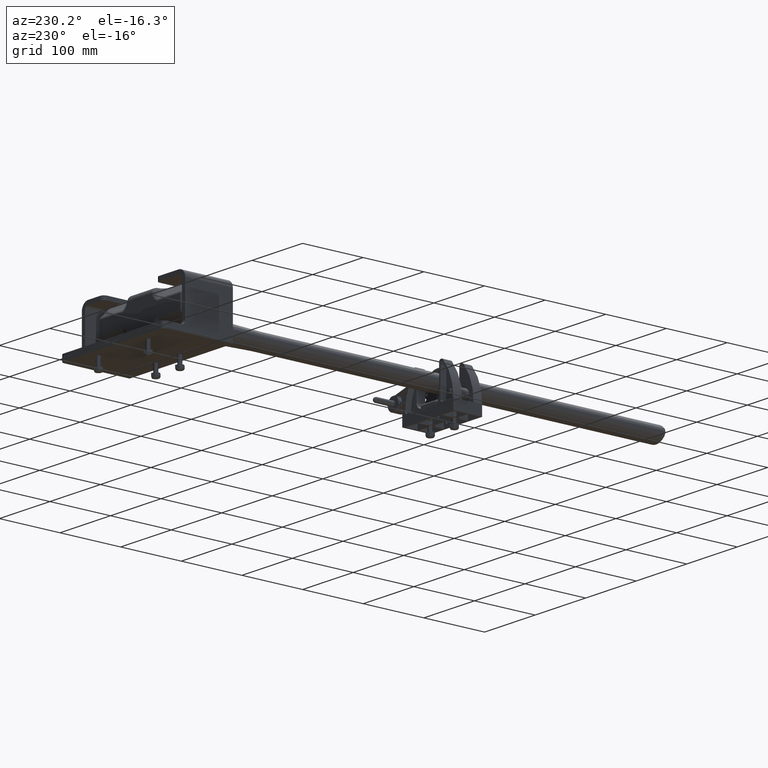
[diagram: clean part render]
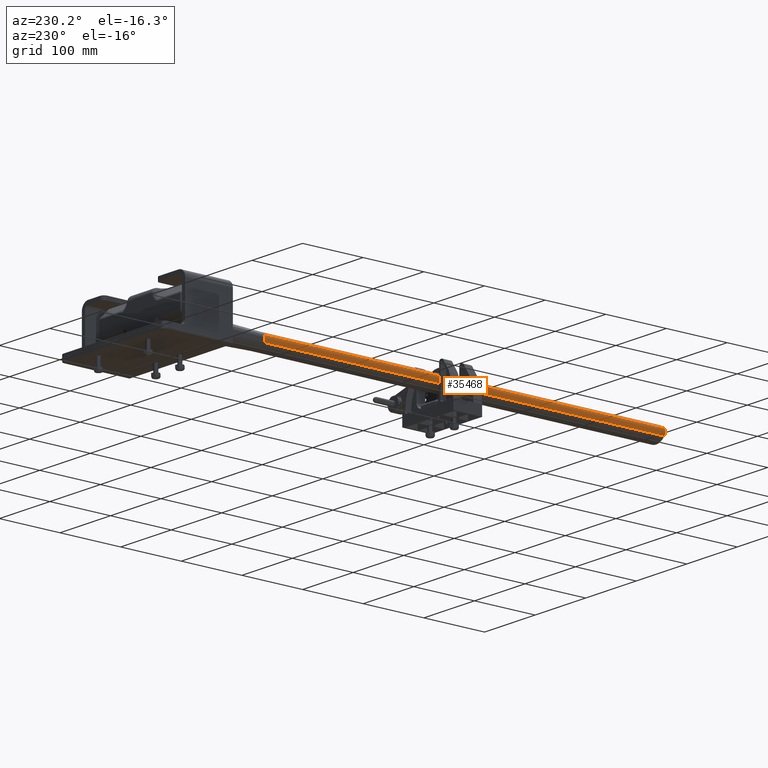
[diagram: same view with one face highlighted and labeled with its STEP entity id]
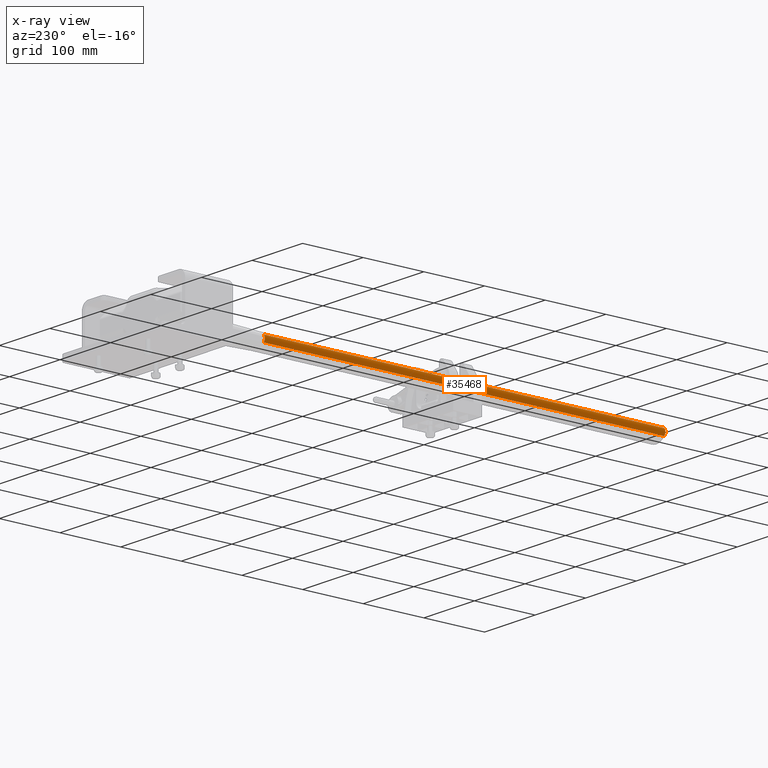
[diagram: x-ray of the same camera — body ghosted, the highlighted face saturated]
A machine part, auxiliary view. The second image highlights one B-rep face of the part: STEP entity #35468.
The next image is the same camera in x-ray: the body ghosted, the highlighted face saturated — about 0% of this face is hidden behind the body in this view.
In plain terms, the highlighted cylindrical surface (edge-blend (fillet) strip) has radius 7.9375 mm, axis along (-0, -1, -0).
Its self-contained STEP definition (entity closure, byte-faithful):
#725 = FACE_OUTER_BOUND ( 'NONE', #17194, .T. ) ;
#733 = CYLINDRICAL_SURFACE ( 'NONE', #52196, 0.3125000000000000000 ) ;
#2627 = CARTESIAN_POINT ( 'NONE',  ( -0.4124999999999997000, 26.00000000000000000, -4.798340551600220300E-018 ) ) ;
#2629 = DIRECTION ( 'NONE',  ( 0.0000000000000000000, 0.0000000000000000000, -1.000000000000000000 ) ) ;
#2630 = DIRECTION ( 'NONE',  ( -0.0000000000000000000, -1.000000000000000000, -0.0000000000000000000 ) ) ;
#10816 = VERTEX_POINT ( 'NONE', #47651 ) ;
#10821 = VERTEX_POINT ( 'NONE', #47656 ) ;
#10848 = VERTEX_POINT ( 'NONE', #47683 ) ;
#10904 = VERTEX_POINT ( 'NONE', #47740 ) ;
#12635 = EDGE_CURVE ( 'NONE', #10848, #10904, #49462, .T. ) ;
#12950 = EDGE_CURVE ( 'NONE', #10904, #10821, #49898, .T. ) ;
#12956 = EDGE_CURVE ( 'NONE', #10816, #10821, #49920, .T. ) ;
#13056 = EDGE_CURVE ( 'NONE', #10848, #10816, #50064, .T. ) ;
#16240 = ORIENTED_EDGE ( 'NONE', *, *, #13056, .T. ) ;
#16241 = ORIENTED_EDGE ( 'NONE', *, *, #12635, .F. ) ;
#16242 = ORIENTED_EDGE ( 'NONE', *, *, #12950, .F. ) ;
#16243 = ORIENTED_EDGE ( 'NONE', *, *, #12956, .T. ) ;
#17194 = EDGE_LOOP ( 'NONE', ( #16243, #16242, #16241, #16240 ) ) ;
#20739 = AXIS2_PLACEMENT_3D ( 'NONE', #51113, #51136, #51137 ) ;
#35468 = ADVANCED_FACE ( 'NONE', ( #725 ), #733, .T. ) ;
#47651 = CARTESIAN_POINT ( 'NONE',  ( -0.6479452054794520000, 0.0000000000000000000, -0.2054794520547945400 ) ) ;
#47656 = CARTESIAN_POINT ( 'NONE',  ( -0.6479452054794517800, 0.0000000000000000000, 0.2054794520547944000 ) ) ;
#47683 = CARTESIAN_POINT ( 'NONE',  ( -0.6479452054794520000, 26.00000000000000000, -0.2054794520547947300 ) ) ;
#47740 = CARTESIAN_POINT ( 'NONE',  ( -0.6479452054794517800, 26.00000000000000000, 0.2054794520547944000 ) ) ;
#49462 = CIRCLE ( 'NONE', #20739, 0.3125000000000000000 ) ;
#49898 = LINE ( 'NONE', #53238, #49905 ) ;
#49905 = VECTOR ( 'NONE', #53239, 39.37007874015748100 ) ;
#49920 = CIRCLE ( 'NONE', #51736, 0.3125000000000000000 ) ;
#50064 = LINE ( 'NONE', #53549, #50066 ) ;
#50066 = VECTOR ( 'NONE', #53550, 39.37007874015748100 ) ;
#51113 = CARTESIAN_POINT ( 'NONE',  ( -0.4124999999999997000, 26.00000000000000000, -4.798340551600220300E-018 ) ) ;
#51136 = DIRECTION ( 'NONE',  ( 0.0000000000000000000, 1.000000000000000000, 0.0000000000000000000 ) ) ;
#51137 = DIRECTION ( 'NONE',  ( 0.0000000000000000000, 0.0000000000000000000, 1.000000000000000000 ) ) ;
#51736 = AXIS2_PLACEMENT_3D ( 'NONE', #53246, #53254, #53255 ) ;
#52196 = AXIS2_PLACEMENT_3D ( 'NONE', #2627, #2630, #2629 ) ;
#53238 = CARTESIAN_POINT ( 'NONE',  ( -0.6479452054794517800, 26.00000000000000000, 0.2054794520547944000 ) ) ;
#53239 = DIRECTION ( 'NONE',  ( -0.0000000000000000000, -1.000000000000000000, -0.0000000000000000000 ) ) ;
#53246 = CARTESIAN_POINT ( 'NONE',  ( -0.4124999999999997000, 0.0000000000000000000, -4.798340551600220300E-018 ) ) ;
#53254 = DIRECTION ( 'NONE',  ( 0.0000000000000000000, 1.000000000000000000, 0.0000000000000000000 ) ) ;
#53255 = DIRECTION ( 'NONE',  ( 0.0000000000000000000, 0.0000000000000000000, 1.000000000000000000 ) ) ;
#53549 = CARTESIAN_POINT ( 'NONE',  ( -0.6479452054794520000, 26.00000000000000000, -0.2054794520547945400 ) ) ;
#53550 = DIRECTION ( 'NONE',  ( -0.0000000000000000000, -1.000000000000000000, -0.0000000000000000000 ) ) ;